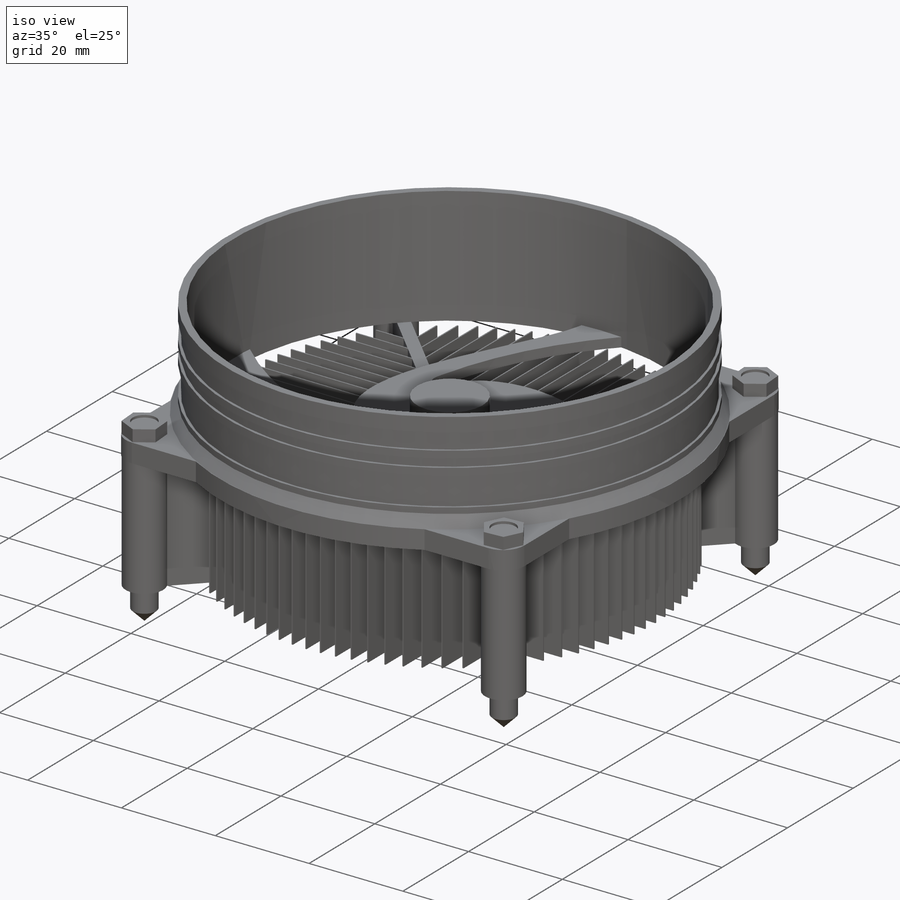
[diagram: iso view]
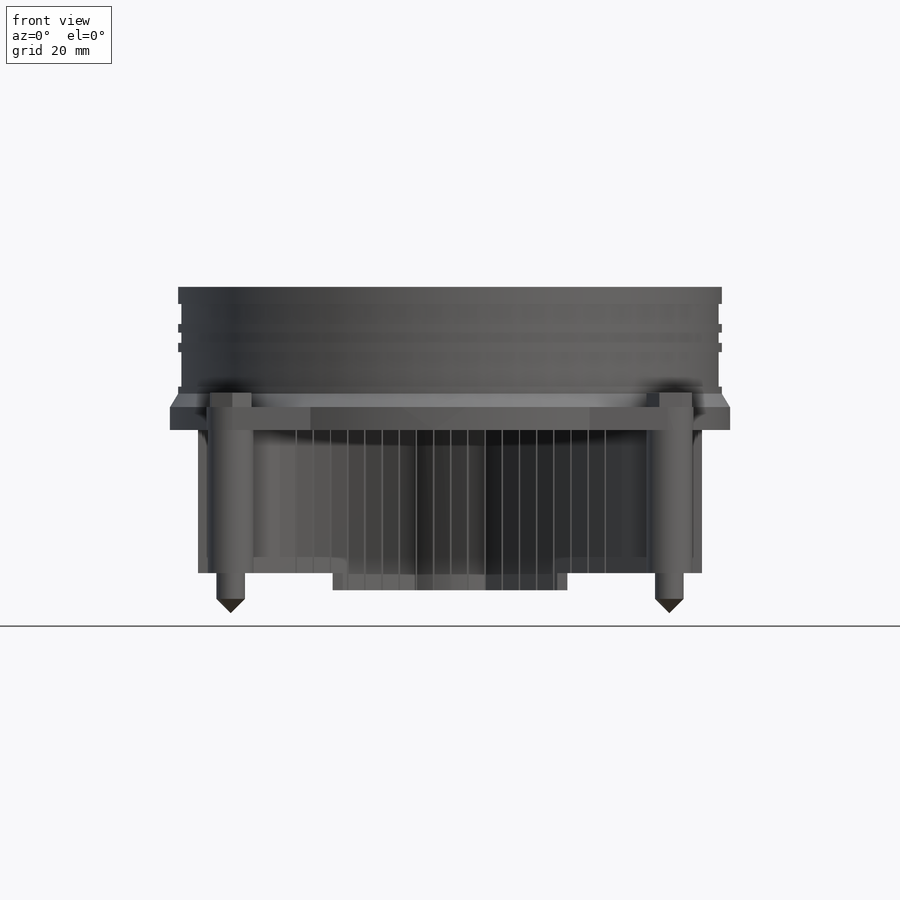
[diagram: front view]
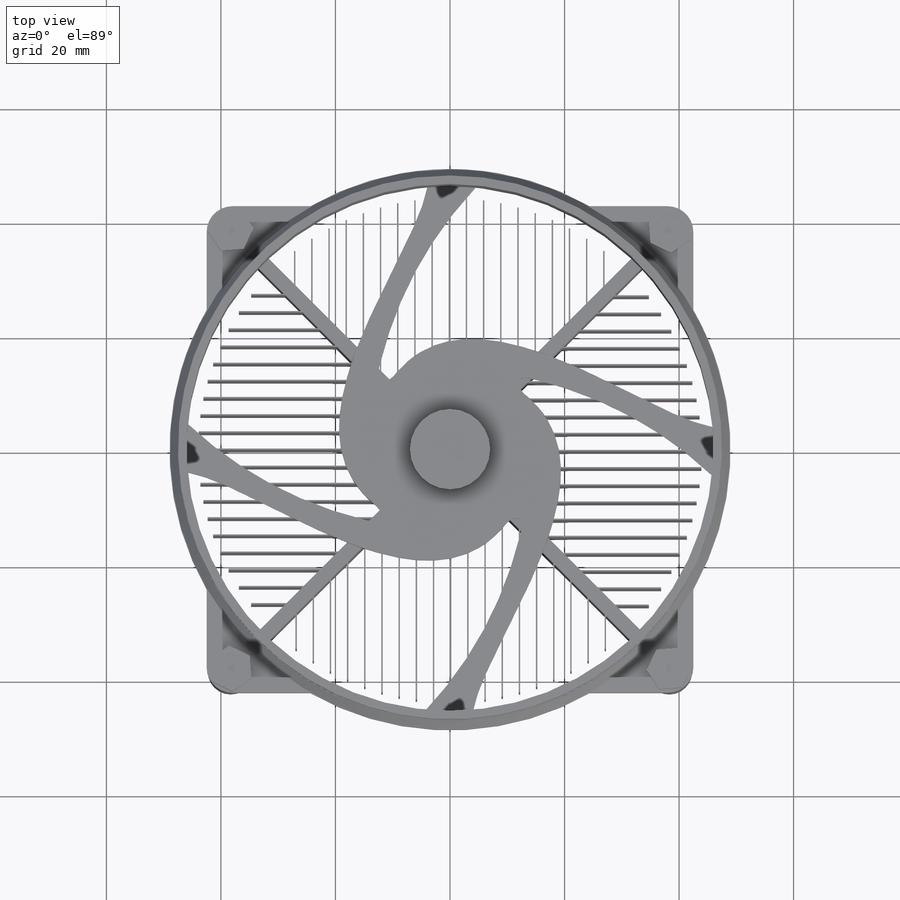
[diagram: top view]
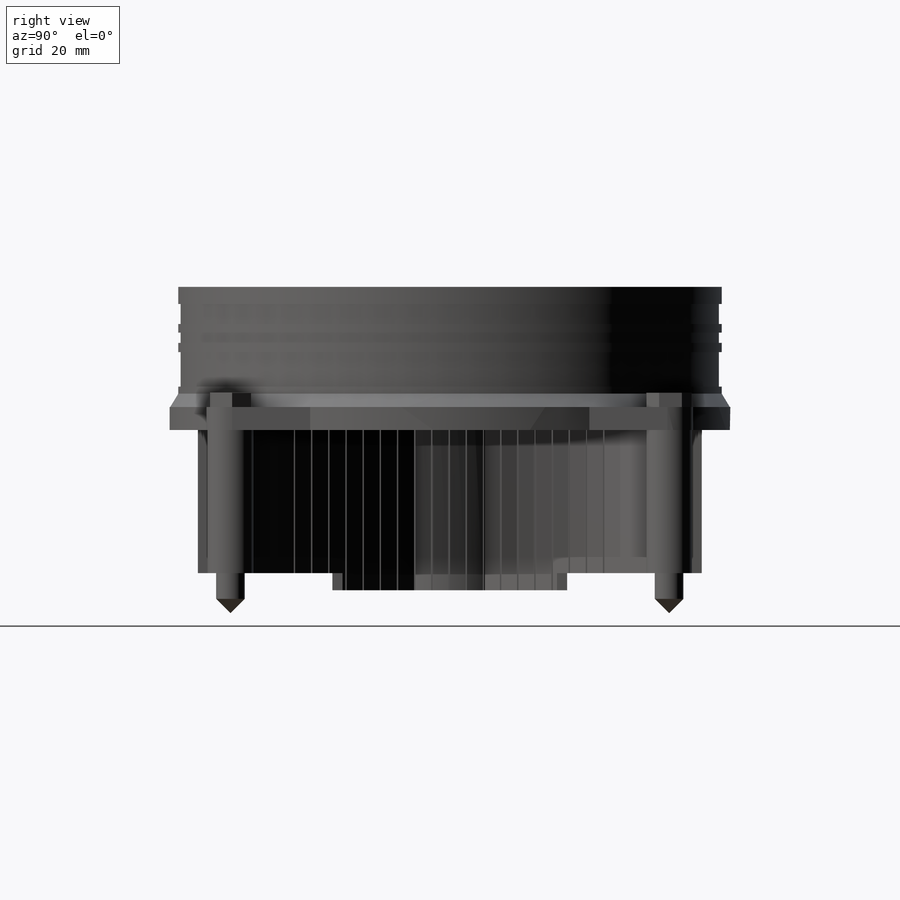
[diagram: right view]
SOLIDWORKS PART (.sldprt)
format: sldprt  version: not decoded by parser v0  size: 1,390,592 bytes
history: native  units: mm
features: sketch x11, extrude x7, cut_extrude x2, pattern_circular x2, material x1, revolve x1, chamfer x1 (+13 scaffold rows collapsed)
feature tree (38):
  scaffold x13  (default folders/planes/origin — collapsed)
  material  "Material <not specified>"
  sketch  "Sketch2"  dims[D1=~92.839324mm]
  extrude  "Boss-Extrude1"  Depth=2mm
  sketch  "Sketch3"  dims[D1=~11.691714mm]
  cut_extrude  "Cut-Extrude3"  Depth=29mm
  pattern_circular  "CirPattern3"  Count=4 Angle=90deg
  sketch  "Sketch4"  dims[D1=~8.519632mm]
  extrude  "Boss-Extrude2"  Depth=5mm
  sketch  "Sketch6"  dims[D1=85.0mm]
  extrude  "Boss-Extrude3"  Depth=4mm
  sketch  "Sketch7"  dims[D1=2.8mm]
  revolve  "Revolve1"  Angle=360deg
  sketch  "Sketch8"  dims[D1=2.5mm]
  extrude  "Boss-Extrude4"  Depth=25mm
  sketch  "Sketch9"  dims[c1.D1=~42.475273mm c1.D10=~41.936295mm c2.D1=3.0mm c2.D2=3.0mm c2.D3=3.0mm c2.D4=3.0mm c2.D5=3.0mm c2.D6=3.0mm c2.D7=3.0mm c2.D8=3.0mm c2.D9=3.0mm c3.D1=28.0mm c3.D5=0.25mm c3.D6=10.0mm c3.D7=5.0mm]
  sketch  "Sketch10"  dims[D1=41.0mm]
  cut_extrude  "Cut-Extrude4"  Depth=28mm
  sketch  "Sketch11"  dims[D1=41.0mm]
  extrude  "Boss-Extrude6"  [1 undecoded]
  sketch  "Sketch12"
  extrude  "Boss-Extrude7"  Depth=36mm
  chamfer  "Chamfer2"  Distance=2.5mm Angle=45deg
  sketch  "Sketch15"  dims[D1=4.0mm]
  extrude  "Boss-Extrude9"  Depth=2.5mm
  pattern_circular  "CirPattern12"  Count=4 Angle=360deg
decode coverage: 22 of 24 modeling features carry decoded parameters
note: ~ marks probable driven/reference dimensions
note: 1 parameter value undecoded
note: suppression state not decoded; provenance and decode notes live in map.json
